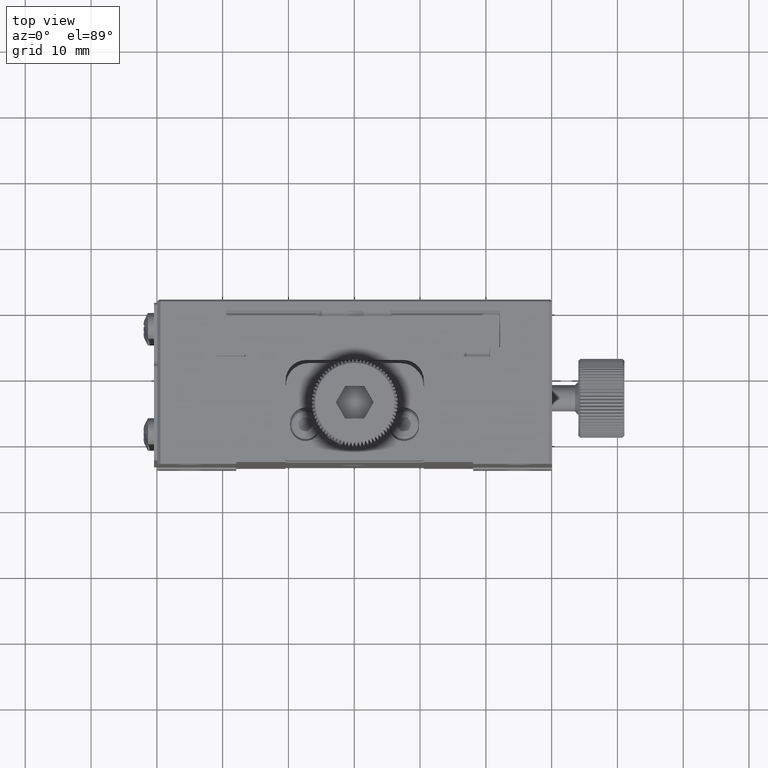
[diagram: clean part render]
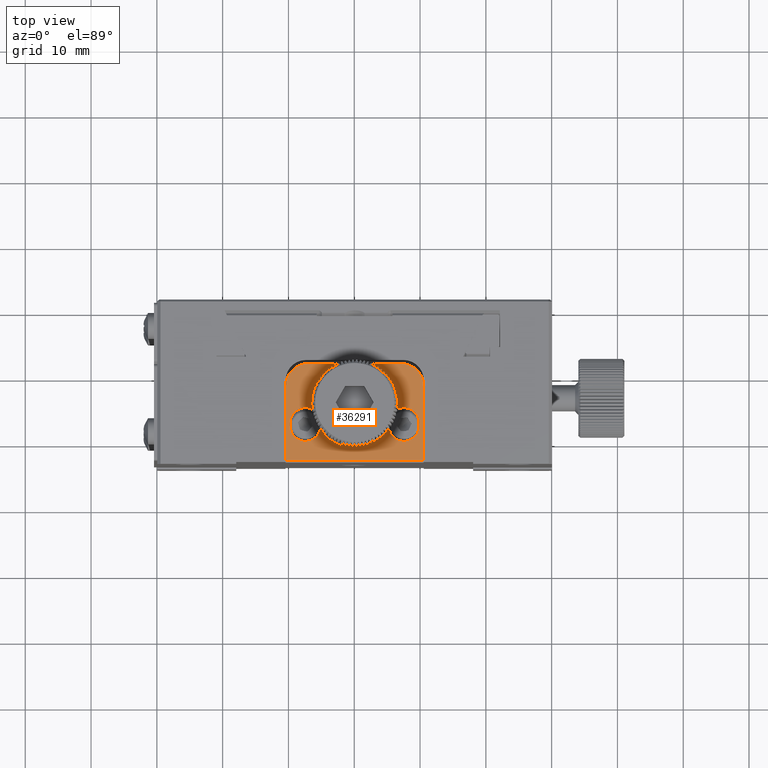
[diagram: same view with one face highlighted and labeled with its STEP entity id]
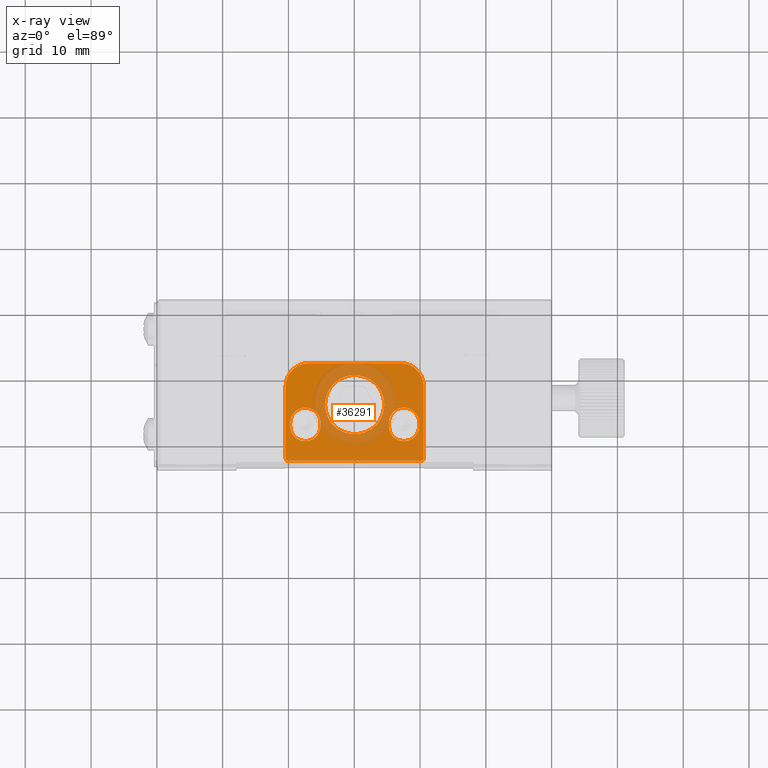
[diagram: x-ray of the same camera — body ghosted, the highlighted face saturated]
A machine part, top view. The second image highlights one B-rep face of the part: STEP entity #36291.
The next image is the same camera in x-ray: the body ghosted, the highlighted face saturated — about 30% of this face is hidden behind the body in this view.
In plain terms, the highlighted planar face has unit normal (-0, 0, -1).
Its self-contained STEP definition (entity closure, byte-faithful):
#252 = ORIENTED_EDGE ( 'NONE', *, *, #13088, .T. ) ;
#855 = CIRCLE ( 'NONE', #60321, 0.3000000000000016542 ) ;
#1499 = VECTOR ( 'NONE', #72537, 1000.000000000000000 ) ;
#1783 = VECTOR ( 'NONE', #40273, 1000.000000000000000 ) ;
#1821 = VERTEX_POINT ( 'NONE', #58091 ) ;
#2184 = CIRCLE ( 'NONE', #41841, 4.499999999999997335 ) ;
#4151 = FACE_BOUND ( 'NONE', #23204, .T. ) ;
#5422 = ORIENTED_EDGE ( 'NONE', *, *, #33424, .T. ) ;
#6663 = EDGE_CURVE ( 'NONE', #45431, #57326, #76176, .T. ) ;
#7150 = CARTESIAN_POINT ( 'NONE',  ( 60.55815170114972545, 48.13657315266944892, 80.17904667704476651 ) ) ;
#7794 = LINE ( 'NONE', #60189, #55191 ) ;
#8147 = CARTESIAN_POINT ( 'NONE',  ( 60.55815170114968993, 38.63657315266944181, 80.17904667704476651 ) ) ;
#8377 = DIRECTION ( 'NONE',  ( 3.515396778011985004E-15, -1.201068257676474474E-16, 1.000000000000000000 ) ) ;
#8585 = DIRECTION ( 'NONE',  ( -3.515396778011985004E-15, 1.201068257676474474E-16, -1.000000000000000000 ) ) ;
#8824 = FACE_BOUND ( 'NONE', #72220, .T. ) ;
#8966 = DIRECTION ( 'NONE',  ( -1.000000000000000000, 0.000000000000000000, 0.000000000000000000 ) ) ;
#9071 = CIRCLE ( 'NONE', #73521, 2.300000000000003375 ) ;
#9081 = CARTESIAN_POINT ( 'NONE',  ( 59.85815170114974393, 42.08657315266945176, 80.17904667704476651 ) ) ;
#9288 = VERTEX_POINT ( 'NONE', #43554 ) ;
#9322 = AXIS2_PLACEMENT_3D ( 'NONE', #48740, #8377, #60368 ) ;
#9753 = VERTEX_POINT ( 'NONE', #68570 ) ;
#10929 = ORIENTED_EDGE ( 'NONE', *, *, #18582, .F. ) ;
#11287 = EDGE_CURVE ( 'NONE', #45431, #24749, #23509, .T. ) ;
#12252 = VECTOR ( 'NONE', #64653, 1000.000000000000000 ) ;
#12917 = DIRECTION ( 'NONE',  ( 4.614364446098437033E-16, 1.000000000000000000, -1.622132190638752668E-30 ) ) ;
#13088 = EDGE_CURVE ( 'NONE', #52708, #21663, #70588, .T. ) ;
#15115 = ORIENTED_EDGE ( 'NONE', *, *, #46992, .F. ) ;
#15834 = ORIENTED_EDGE ( 'NONE', *, *, #39101, .T. ) ;
#16637 = EDGE_CURVE ( 'NONE', #9753, #28664, #7794, .T. ) ;
#17448 = CARTESIAN_POINT ( 'NONE',  ( 39.55815170114969703, 38.63657315266951287, 80.17904667704483757 ) ) ;
#17534 = DIRECTION ( 'NONE',  ( 3.515396778011985004E-15, -1.201068257676474474E-16, 1.000000000000000000 ) ) ;
#18582 = EDGE_CURVE ( 'NONE', #52708, #34701, #24576, .T. ) ;
#18599 = ORIENTED_EDGE ( 'NONE', *, *, #11287, .T. ) ;
#19788 = LINE ( 'NONE', #8147, #1499 ) ;
#20469 = EDGE_CURVE ( 'NONE', #57077, #1821, #22306, .T. ) ;
#20757 = DIRECTION ( 'NONE',  ( -1.000000000000000000, 3.497202527569239552E-15, -0.000000000000000000 ) ) ;
#21663 = VERTEX_POINT ( 'NONE', #43631 ) ;
#22002 = DIRECTION ( 'NONE',  ( 1.000000000000000000, 0.000000000000000000, -6.033820786006295184E-15 ) ) ;
#22051 = LINE ( 'NONE', #57347, #1783 ) ;
#22306 = CIRCLE ( 'NONE', #59474, 0.3000000000000016542 ) ;
#22687 = VECTOR ( 'NONE', #53132, 1000.000000000000000 ) ;
#22960 = DIRECTION ( 'NONE',  ( 1.000000000000000000, 0.000000000000000000, -6.033820786006277040E-15 ) ) ;
#23204 = EDGE_LOOP ( 'NONE', ( #67012 ) ) ;
#23509 = LINE ( 'NONE', #49012, #12252 ) ;
#23662 = CARTESIAN_POINT ( 'NONE',  ( 59.85815170114974393, 42.58657315266945176, 80.17904667704475230 ) ) ;
#23707 = VECTOR ( 'NONE', #12917, 1000.000000000000000 ) ;
#24576 = CIRCLE ( 'NONE', #65455, 3.500000000000003109 ) ;
#24749 = VERTEX_POINT ( 'NONE', #73856 ) ;
#25328 = CARTESIAN_POINT ( 'NONE',  ( 57.05815170114973967, 48.13657315266945602, 80.17904667704478072 ) ) ;
#26176 = LINE ( 'NONE', #73885, #59025 ) ;
#26264 = FACE_BOUND ( 'NONE', #42521, .T. ) ;
#26283 = EDGE_CURVE ( 'NONE', #9288, #39466, #54787, .T. ) ;
#27428 = DIRECTION ( 'NONE',  ( -3.515396778011990526E-15, 1.201068257676474474E-16, -1.000000000000000000 ) ) ;
#28664 = VERTEX_POINT ( 'NONE', #55592 ) ;
#28954 = CARTESIAN_POINT ( 'NONE',  ( 42.55815170114971124, 42.08657315266948018, 80.17904667704483757 ) ) ;
#30562 = EDGE_CURVE ( 'NONE', #9288, #28664, #50233, .T. ) ;
#30641 = CARTESIAN_POINT ( 'NONE',  ( 59.85815170114973682, 42.08657315266945176, 80.17904667704476651 ) ) ;
#30921 = CARTESIAN_POINT ( 'NONE',  ( 40.25815170114972830, 42.58657315266950150, 80.17904667704483757 ) ) ;
#32229 = CARTESIAN_POINT ( 'NONE',  ( 39.85815170114968709, 37.13657315266951287, 80.17904667704483757 ) ) ;
#32670 = CARTESIAN_POINT ( 'NONE',  ( 43.05815170114973256, 48.13657315266950576, 80.17904667704482335 ) ) ;
#32871 = CARTESIAN_POINT ( 'NONE',  ( 39.55815170114969703, 38.63657315266951287, 80.17904667704483757 ) ) ;
#33067 = DIRECTION ( 'NONE',  ( -3.515396778011985004E-15, 1.201068257676474474E-16, -1.000000000000000000 ) ) ;
#33068 = DIRECTION ( 'NONE',  ( -3.515396778011985004E-15, 1.201068257676474474E-16, -1.000000000000000000 ) ) ;
#33424 = EDGE_CURVE ( 'NONE', #47812, #34701, #26176, .T. ) ;
#33467 = CARTESIAN_POINT ( 'NONE',  ( 57.55815170114973967, 42.58657315266945886, 80.17904667704476651 ) ) ;
#34660 = CARTESIAN_POINT ( 'NONE',  ( 39.55815170114973256, 48.13657315266951287, 80.17904667704483757 ) ) ;
#34701 = VERTEX_POINT ( 'NONE', #40465 ) ;
#36291 = ADVANCED_FACE ( 'NONE', ( #4151, #49960, #8824, #26264 ), #68560, .F. ) ;
#36370 = ORIENTED_EDGE ( 'NONE', *, *, #55761, .T. ) ;
#36759 = EDGE_CURVE ( 'NONE', #47812, #72193, #74794, .T. ) ;
#39101 = EDGE_CURVE ( 'NONE', #57077, #72193, #19788, .T. ) ;
#39466 = VERTEX_POINT ( 'NONE', #30921 ) ;
#39514 = CARTESIAN_POINT ( 'NONE',  ( 50.05815170114970414, 45.33657315266948018, 80.17904667704476651 ) ) ;
#39612 = CARTESIAN_POINT ( 'NONE',  ( 57.05815170114976098, 51.63657315266944892, 80.17904667704478072 ) ) ;
#40273 = DIRECTION ( 'NONE',  ( 1.000000000000000000, -3.497202527569239552E-15, -0.000000000000000000 ) ) ;
#40465 = CARTESIAN_POINT ( 'NONE',  ( 43.05815170114973967, 51.63657315266949865, 80.17904667704480914 ) ) ;
#41841 = AXIS2_PLACEMENT_3D ( 'NONE', #39514, #50412, #62036 ) ;
#42394 = CARTESIAN_POINT ( 'NONE',  ( 40.25815170114973540, 42.58657315266950860, 80.17904667704483757 ) ) ;
#42521 = EDGE_LOOP ( 'NONE', ( #67674, #36370, #56509, #18599 ) ) ;
#43554 = CARTESIAN_POINT ( 'NONE',  ( 40.25815170114972830, 42.08657315266948729, 80.17904667704485178 ) ) ;
#43631 = CARTESIAN_POINT ( 'NONE',  ( 39.55815170114969703, 37.13657315266951287, 80.17904667704483757 ) ) ;
#44308 = DIRECTION ( 'NONE',  ( 1.000000000000000000, 0.000000000000000000, 0.000000000000000000 ) ) ;
#44342 = DIRECTION ( 'NONE',  ( 1.000000000000000000, 0.000000000000000000, -6.033820786006277040E-15 ) ) ;
#45002 = VECTOR ( 'NONE', #56401, 1000.000000000000000 ) ;
#45431 = VERTEX_POINT ( 'NONE', #54751 ) ;
#46053 = DIRECTION ( 'NONE',  ( 3.515396778011985004E-15, -1.201068257676474474E-16, 1.000000000000000000 ) ) ;
#46992 = EDGE_CURVE ( 'NONE', #9753, #39466, #9071, .T. ) ;
#47007 = ORIENTED_EDGE ( 'NONE', *, *, #36759, .F. ) ;
#47163 = ORIENTED_EDGE ( 'NONE', *, *, #75975, .T. ) ;
#47812 = VERTEX_POINT ( 'NONE', #39612 ) ;
#48549 = DIRECTION ( 'NONE',  ( -1.762479051592433247E-15, -1.000000000000000000, 6.195813179281665614E-30 ) ) ;
#48740 = CARTESIAN_POINT ( 'NONE',  ( 57.55815170114973967, 42.08657315266945886, 80.17904667704478072 ) ) ;
#48967 = AXIS2_PLACEMENT_3D ( 'NONE', #28954, #46053, #22002 ) ;
#49012 = CARTESIAN_POINT ( 'NONE',  ( 55.25815170114972830, 42.58657315266947307, 80.17904667704478072 ) ) ;
#49360 = CARTESIAN_POINT ( 'NONE',  ( 45.55815170114970414, 45.33657315266948018, 80.17904667704478072 ) ) ;
#49960 = FACE_OUTER_BOUND ( 'NONE', #54595, .T. ) ;
#50233 = CIRCLE ( 'NONE', #48967, 2.299999999999996270 ) ;
#50412 = DIRECTION ( 'NONE',  ( -3.515396778011985398E-15, 1.201068257676474474E-16, -1.000000000000000000 ) ) ;
#50914 = CARTESIAN_POINT ( 'NONE',  ( 60.25815170114969987, 37.13657315266945602, 80.17904667704476651 ) ) ;
#51741 = CARTESIAN_POINT ( 'NONE',  ( 39.85815170114967287, 36.83657315266951571, 80.17904667704483757 ) ) ;
#52454 = CIRCLE ( 'NONE', #53721, 2.300000000000003375 ) ;
#52708 = VERTEX_POINT ( 'NONE', #34660 ) ;
#53132 = DIRECTION ( 'NONE',  ( -3.497202527569239552E-15, -1.000000000000000000, 1.229405449747227670E-29 ) ) ;
#53721 = AXIS2_PLACEMENT_3D ( 'NONE', #33467, #56752, #44342 ) ;
#54367 = VERTEX_POINT ( 'NONE', #49360 ) ;
#54518 = ORIENTED_EDGE ( 'NONE', *, *, #61091, .F. ) ;
#54595 = EDGE_LOOP ( 'NONE', ( #54518, #47163, #58949, #15834, #47007, #5422, #10929, #252 ) ) ;
#54751 = CARTESIAN_POINT ( 'NONE',  ( 55.25815170114972830, 42.08657315266946597, 80.17904667704478072 ) ) ;
#54787 = LINE ( 'NONE', #42394, #23707 ) ;
#55191 = VECTOR ( 'NONE', #48549, 1000.000000000000000 ) ;
#55592 = CARTESIAN_POINT ( 'NONE',  ( 44.85815170114970840, 42.08657315266947307, 80.17904667704482335 ) ) ;
#55761 = EDGE_CURVE ( 'NONE', #69845, #57326, #61840, .T. ) ;
#56401 = DIRECTION ( 'NONE',  ( -3.497202527569239552E-15, -1.000000000000000000, 1.229405449747227670E-29 ) ) ;
#56509 = ORIENTED_EDGE ( 'NONE', *, *, #6663, .F. ) ;
#56530 = DIRECTION ( 'NONE',  ( -1.000000000000000000, 0.000000000000000000, 3.515396778011990526E-15 ) ) ;
#56752 = DIRECTION ( 'NONE',  ( 3.515396778011985004E-15, -1.201068257676474474E-16, 1.000000000000000000 ) ) ;
#57077 = VERTEX_POINT ( 'NONE', #60615 ) ;
#57326 = VERTEX_POINT ( 'NONE', #30641 ) ;
#57347 = CARTESIAN_POINT ( 'NONE',  ( 39.55815170114967572, 36.83657315266951571, 80.17904667704483757 ) ) ;
#58091 = CARTESIAN_POINT ( 'NONE',  ( 60.25815170114968566, 36.83657315266944465, 80.17904667704480914 ) ) ;
#58949 = ORIENTED_EDGE ( 'NONE', *, *, #20469, .F. ) ;
#59025 = VECTOR ( 'NONE', #20757, 1000.000000000000000 ) ;
#59474 = AXIS2_PLACEMENT_3D ( 'NONE', #50914, #33067, #44308 ) ;
#59569 = ORIENTED_EDGE ( 'NONE', *, *, #30562, .F. ) ;
#60149 = ORIENTED_EDGE ( 'NONE', *, *, #26283, .T. ) ;
#60189 = CARTESIAN_POINT ( 'NONE',  ( 44.85815170114971551, 42.08657315266949439, 80.17904667704482335 ) ) ;
#60252 = DIRECTION ( 'NONE',  ( -3.515396778011985004E-15, 1.201068257676474474E-16, -1.000000000000000000 ) ) ;
#60321 = AXIS2_PLACEMENT_3D ( 'NONE', #32229, #8585, #8966 ) ;
#60368 = DIRECTION ( 'NONE',  ( 1.000000000000000000, 0.000000000000000000, -6.033820786006277040E-15 ) ) ;
#60615 = CARTESIAN_POINT ( 'NONE',  ( 60.55815170114968282, 37.13657315266945602, 80.17904667704476651 ) ) ;
#61091 = EDGE_CURVE ( 'NONE', #70636, #21663, #855, .T. ) ;
#61840 = LINE ( 'NONE', #9081, #45002 ) ;
#62036 = DIRECTION ( 'NONE',  ( -1.000000000000000000, 0.000000000000000000, 3.083952846180992055E-15 ) ) ;
#62405 = AXIS2_PLACEMENT_3D ( 'NONE', #32871, #27428, #56530 ) ;
#64653 = DIRECTION ( 'NONE',  ( 3.497202527569239552E-15, 1.000000000000000000, -1.229405449747227670E-29 ) ) ;
#65425 = EDGE_CURVE ( 'NONE', #54367, #54367, #2184, .T. ) ;
#65455 = AXIS2_PLACEMENT_3D ( 'NONE', #32670, #33068, #69140 ) ;
#65677 = DIRECTION ( 'NONE',  ( -1.000000000000000000, 0.000000000000000000, 3.965082230804126670E-15 ) ) ;
#67012 = ORIENTED_EDGE ( 'NONE', *, *, #65425, .T. ) ;
#67674 = ORIENTED_EDGE ( 'NONE', *, *, #73377, .F. ) ;
#68560 = PLANE ( 'NONE',  #62405 ) ;
#68570 = CARTESIAN_POINT ( 'NONE',  ( 44.85815170114972972, 42.58657315266950150, 80.17904667704480914 ) ) ;
#69140 = DIRECTION ( 'NONE',  ( -1.000000000000000000, 0.000000000000000000, 3.965082230804126670E-15 ) ) ;
#69845 = VERTEX_POINT ( 'NONE', #23662 ) ;
#70588 = LINE ( 'NONE', #17448, #22687 ) ;
#70636 = VERTEX_POINT ( 'NONE', #51741 ) ;
#72193 = VERTEX_POINT ( 'NONE', #7150 ) ;
#72220 = EDGE_LOOP ( 'NONE', ( #15115, #76297, #59569, #60149 ) ) ;
#72537 = DIRECTION ( 'NONE',  ( 3.497202527569239552E-15, 1.000000000000000000, -1.229405449747227670E-29 ) ) ;
#73377 = EDGE_CURVE ( 'NONE', #69845, #24749, #52454, .T. ) ;
#73521 = AXIS2_PLACEMENT_3D ( 'NONE', #76081, #17534, #22960 ) ;
#73856 = CARTESIAN_POINT ( 'NONE',  ( 55.25815170114972830, 42.58657315266946597, 80.17904667704478072 ) ) ;
#73885 = CARTESIAN_POINT ( 'NONE',  ( 39.55815170114973967, 51.63657315266951287, 80.17904667704478072 ) ) ;
#74794 = CIRCLE ( 'NONE', #76052, 3.500000000000003109 ) ;
#75975 = EDGE_CURVE ( 'NONE', #70636, #1821, #22051, .T. ) ;
#76052 = AXIS2_PLACEMENT_3D ( 'NONE', #25328, #60252, #65677 ) ;
#76081 = CARTESIAN_POINT ( 'NONE',  ( 42.55815170114973256, 42.58657315266950150, 80.17904667704482335 ) ) ;
#76176 = CIRCLE ( 'NONE', #9322, 2.300000000000003375 ) ;
#76297 = ORIENTED_EDGE ( 'NONE', *, *, #16637, .T. ) ;